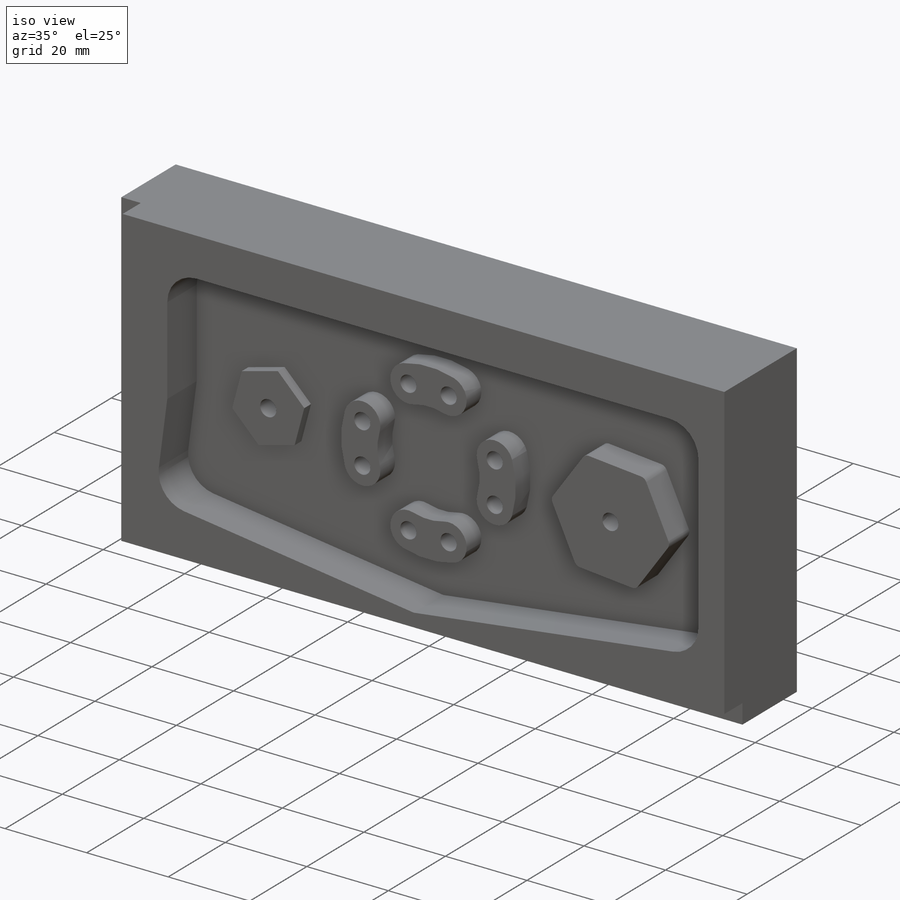
[diagram: iso view]
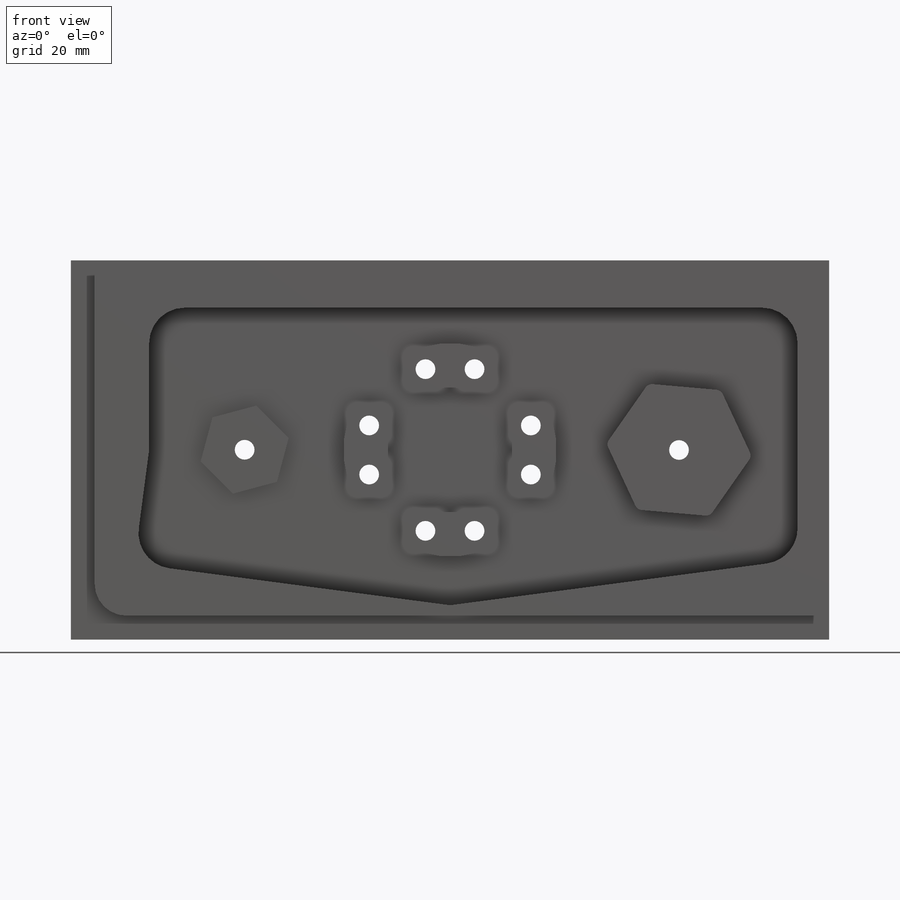
[diagram: front view]
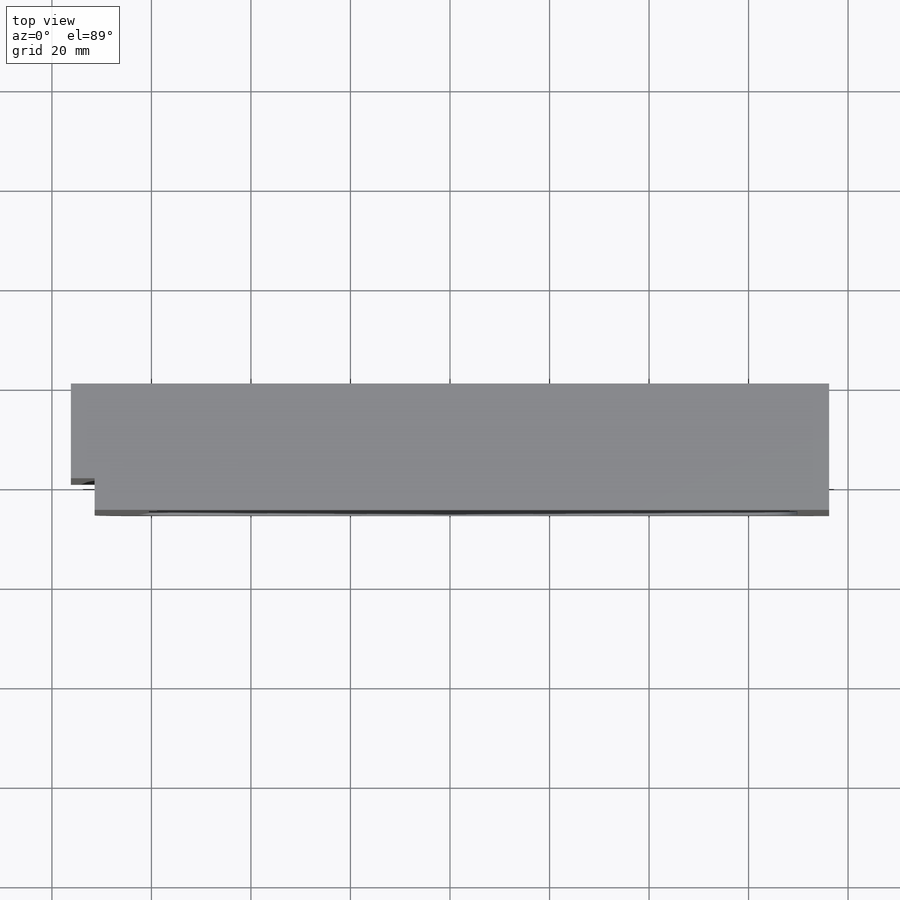
[diagram: top view]
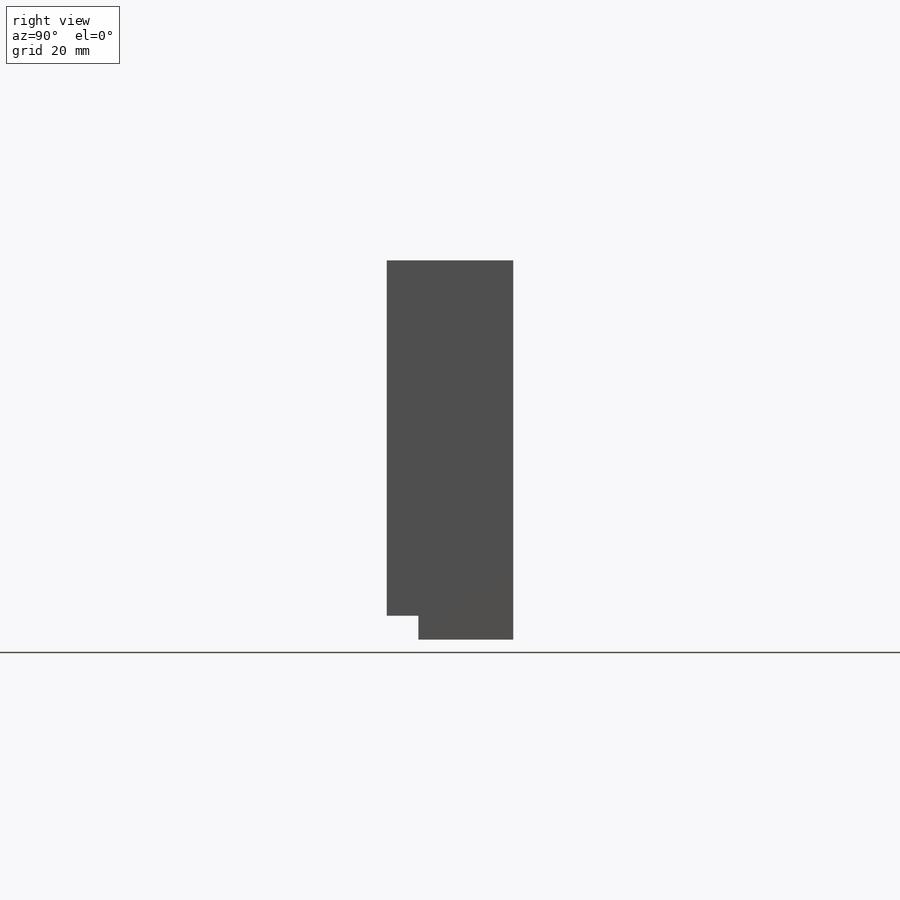
[diagram: right view]
SOLIDWORKS PART (.sldprt)
format: sldprt  version: not decoded by parser v0  size: 394,240 bytes
history: native  units: mm
features: sketch x8, extrude x4, cut_extrude x2, material x1, hole x1 (+12 scaffold rows collapsed)
feature tree (28):
  scaffold x12  (default folders/planes/origin — collapsed)
  material  "Material <not specified>"
  sketch  "Sketch1"  dims[D1=38.1mm D2=38.1mm D3=76.2mm D4=76.2mm]
  extrude  "Boss-Extrude1"  Depth=25.4mm
  sketch  "Sketch2"  dims[D4=6.35mm D1=0.0mm D2=4.7752mm D3=0.0mm D5=4.7752mm]
  cut_extrude  "Cut-Extrude1"  Depth=6.35mm
  sketch  "Sketch5"  dims[c1.D1=7.1374mm c1.D3=7.1374mm c1.D4=7.1374mm c1.D6=7.1374mm c2.D3=7.1374mm c2.D2=~61.558451mm c3.D2=97.5deg c3.D3=~60.245244mm c4.D3=97.5deg c4.D4=~116.725202mm c5.D4=90.0deg c5.D5=~20.64496mm c6.D5=90.0deg c6.D6=~3.997242mm c7.D6=160.0deg c7.D7=6.35mm c7.D8=~20.644693mm c8.D8=0.281deg c8.D9=~115.957238mm c9.D9=0.281deg c9.D8=~115.957238mm c10.D8=0.0deg c10.D7=6.35mm c11.D8=10.9474mm c11.D1=10.9474mm c11.D2=9.525mm c11.D4=~74.447951mm c11.D5=7.5deg c11.D3=~25.824929mm c12.D8=97.5deg c13.D8=~25.603993mm c14.D8=90.0deg]
  cut_extrude  "Cut-Extrude3"  Depth=10.3124mm
  sketch  "Sketch6"  dims[c1.D1=42.8498mm c1.D2=25.0698mm c1.D3=0.0mm c1.D4=~27.217027mm c1.D5=135.0deg c1.D6=~27.652722mm c1.D7=45.0deg c1.D8=~27.695765mm c1.D9=135.0deg c1.D10=~27.312192mm c1.D11=45.0deg c2.D3=7.112mm c2.D4=7.112mm c2.D5=7.112mm c2.D6=7.112mm c2.D12=3.556mm c2.D13=3.556mm c2.D14=3.556mm c2.D15=3.556mm c2.D16=3.556mm c2.D17=3.556mm c2.D18=3.556mm c2.D19=3.556mm]
  extrude  "Boss-Extrude3"  Depth=5.1562mm
  sketch  "Sketch11"  dims[c1.D4=3.9624mm c1.D1=15.875mm c1.D2=19.05mm c1.D3=41.275mm c2.D4=44.45mm c2.D2=~8.855964mm c3.D2=15.0deg]
  extrude  "Boss-Extrude4"  Depth=2.3622mm
  sketch  "Sketch12"  dims[c1.D4=1.5748mm c1.D5=3.9624mm c1.D1=25.4mm c1.D2=~10.821966mm c2.D2=35.0deg c2.D3=46.0248mm]
  extrude  "Boss-Extrude5"  Depth=7.1374mm
  hole  "5/32 (0.15625) Diameter Hole1"  Diameter=3.96875mm Depth=20.2438mm
  sketch  "Sketch10"  dims[D1=0.0mm]
  sketch  "Sketch9"  dims[hole-wizard template sketch: 60 standard entries collapsed; hole parameters kept: c18.Thru Hole Depth=20.2438mm]
decode coverage: 15 of 15 modeling features carry decoded parameters
note: ~ marks probable driven/reference dimensions
note: suppression state not decoded; provenance and decode notes live in map.json
